MODEL slx_9637fccc27db
KIND model
CONFIG InitFcn = initsim
BLOCK [SubSystem] Animation
  FunctionWithSeparateData = off
  MaskCallbackString = |||||
  MaskEnableString = on,on,on,on,on,on
  MaskHideContents = off
  MaskIconFrame = on
  MaskIconOpaque = on
  MaskIconRotate = none
  MaskIconUnits = autoscale
  MaskPortRotate = default
  MaskPromptString = Number of Nodes|xMax|YMax|Update period|x0|y0
  MaskStyleString = edit,edit,edit,edit,edit,edit
  MaskToolTipString = on,on,on,on,on,on
  MaskTunableValueString = on,on,on,on,on,on
  MaskValueString = 7|30|30|0.1|xPos|yPos
  MaskVariables = numMotes=@1;xmax=@2;ymax=@3;ts=@4;x0=@5;y0=@6;
  MaskVisibilityString = on,on,on,on,on,on
  MinAlgLoopOccurrences = off
  Opaque = off
  Ports = [2]
  PropExecContextOutsideSubsystem = off
  RTWSystemCode = Auto
  RequestExecContextInheritance = off
BLOCK [S-Function] Animation/Mote Animation
  DeleteFcn = if ~isempty(findobj('type','figure','name','dblpend1 Animation'));close('dblpend1 Animation'); end;
  EnableBusSupport = off
  FunctionName = moteanimation
  Parameters = [numMotes ts xmax ymax] x0 y0
  Ports = [1]
BLOCK [Mux] Animation/Mux
  DisplayOption = bar
  Inputs = 2
  Ports = [2, 1]
BLOCK [Inport] Animation/x
  IconDisplay = Port number
BLOCK [Inport] Animation/y
  IconDisplay = Port number
  Port = 2
BLOCK [Clock] Clock
BLOCK [Display] Display
  Decimation = 1
  Lockdown = off
  Ports = [1]
BLOCK [From] From41
  CloseFcn = tagdialog Close
  GotoTag = x2
  TagVisibility = global
BLOCK [From] From42
  CloseFcn = tagdialog Close
  GotoTag = x3
  TagVisibility = global
BLOCK [From] From43
  CloseFcn = tagdialog Close
  GotoTag = x4
  TagVisibility = global
BLOCK [From] From44
  CloseFcn = tagdialog Close
  GotoTag = y2
  TagVisibility = global
BLOCK [From] From45
  CloseFcn = tagdialog Close
  GotoTag = y3
  TagVisibility = global
BLOCK [From] From46
  CloseFcn = tagdialog Close
  GotoTag = y4
  TagVisibility = global
BLOCK [From] From53
  CloseFcn = tagdialog Close
  GotoTag = x5
  TagVisibility = global
BLOCK [From] From54
  CloseFcn = tagdialog Close
  GotoTag = x6
  TagVisibility = global
BLOCK [From] From55
  CloseFcn = tagdialog Close
  GotoTag = x7
  TagVisibility = global
BLOCK [From] From56
  CloseFcn = tagdialog Close
  GotoTag = y5
  TagVisibility = global
BLOCK [From] From57
  CloseFcn = tagdialog Close
  GotoTag = y6
  TagVisibility = global
BLOCK [From] From58
  CloseFcn = tagdialog Close
  GotoTag = y7
  TagVisibility = global
BLOCK [From] From66
  CloseFcn = tagdialog Close
  GotoTag = y1
  TagVisibility = global
BLOCK [From] From70
  CloseFcn = tagdialog Close
  GotoTag = x1
  TagVisibility = global
BLOCK [Goto] Goto1
  GotoTag = y2
  TagVisibility = global
BLOCK [Goto] Goto10
  GotoTag = x5
  TagVisibility = global
BLOCK [Goto] Goto11
  GotoTag = y6
  TagVisibility = global
BLOCK [Goto] Goto12
  GotoTag = x6
  TagVisibility = global
BLOCK [Goto] Goto13
  GotoTag = y7
  TagVisibility = global
BLOCK [Goto] Goto14
  GotoTag = x7
  TagVisibility = global
BLOCK [Goto] Goto2
  GotoTag = x2
  TagVisibility = global
BLOCK [Goto] Goto3
  GotoTag = y3
  TagVisibility = global
BLOCK [Goto] Goto4
  GotoTag = x3
  TagVisibility = global
BLOCK [Goto] Goto5
  GotoTag = y4
  TagVisibility = global
BLOCK [Goto] Goto6
  GotoTag = x4
  TagVisibility = global
BLOCK [Goto] Goto7
  GotoTag = y5
  TagVisibility = global
BLOCK [Goto] Goto8
  GotoTag = y1
  TagVisibility = global
BLOCK [Goto] Goto9
  GotoTag = x1
  TagVisibility = global
BLOCK [Mux] Mux1
  DisplayOption = bar
  Inputs = 7
  Ports = [7, 1]
BLOCK [Mux] Mux3
  DisplayOption = bar
  Inputs = 7
  Ports = [7, 1]
BLOCK [Scope] Network Schedule
  DataFormat = StructureWithTime
  Floating = off
  LimitDataPoints = off
  NumInputPorts = 1
  Ports = [1]
  SaveName = nschedule1
  ShowLegends = off
  TimeRange = 0.5
  YMax = 10.7
  YMin = 0.8
  ZoomMode = xonly
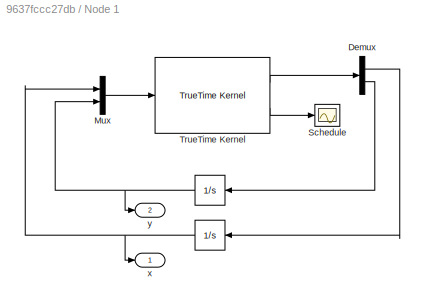
BLOCK [SubSystem] Node 1
  FunctionWithSeparateData = off
  MaskEnableString = on
  MaskHideContents = off
  MaskIconFrame = on
  MaskIconOpaque = on
  MaskIconRotate = none
  MaskIconUnits = autoscale
  MaskPortRotate = default
  MaskPromptString = NodeNbr
  MaskStyleString = edit
  MaskToolTipString = on
  MaskTunableValueString = on
  MaskType = MOTE
  MaskValueString = 1
  MaskVariables = nodeNbr=@1;
  MaskVisibilityString = on
  MinAlgLoopOccurrences = off
  Opaque = off
  Ports = [0, 2]
  PropExecContextOutsideSubsystem = off
  RTWSystemCode = Auto
  RequestExecContextInheritance = off
BLOCK [Integrator] Node 1/ 
  InitialCondition = xPos(nodeNbr)
  Ports = [1, 1]
BLOCK [Demux] Node 1/Demux
  Outputs = 2
  Ports = [1, 2]
BLOCK [Mux] Node 1/Mux
  DisplayOption = bar
  Inputs = 2
  Ports = [2, 1]
BLOCK [Scope] Node 1/Schedule
  Floating = off
  LimitDataPoints = off
  NumInputPorts = 1
  Ports = [1]
  ShowLegends = off
  TickLabels = on
  TimeRange = 3.5
  YMax = 3.7
  YMin = 1.8
  ZoomMode = xonly
BLOCK [Reference] Node 1/TrueTime Kernel  REF=truetime/TrueTime Kernel  (lib defined in slx_0362a698a4ec)
  Ports = [1, 2]
  SourceBlock = truetime/TrueTime Kernel
  SourceType = Unknown
  args = nodeNbr
  battery = off
  clockoffsetdrift = [0 0]
  ninputsoutputs = [2 2]
  ntriggers = 0
  nwnodenbr = nodeNbr
  poweroutput = off
  schedoutput = on
  sfun = node_init
  trigtype = falling
BLOCK [Outport] Node 1/x
  IconDisplay = Port number
BLOCK [Outport] Node 1/y
  IconDisplay = Port number
  Port = 2
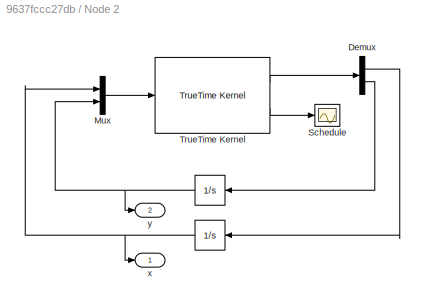
BLOCK [SubSystem] Node 2
  FunctionWithSeparateData = off
  MaskEnableString = on
  MaskHideContents = off
  MaskIconFrame = on
  MaskIconOpaque = on
  MaskIconRotate = none
  MaskIconUnits = autoscale
  MaskPortRotate = default
  MaskPromptString = NodeNbr
  MaskStyleString = edit
  MaskToolTipString = on
  MaskTunableValueString = on
  MaskType = MOTE
  MaskValueString = 2
  MaskVariables = nodeNbr=@1;
  MaskVisibilityString = on
  MinAlgLoopOccurrences = off
  Opaque = off
  Ports = [0, 2]
  PropExecContextOutsideSubsystem = off
  RTWSystemCode = Auto
  RequestExecContextInheritance = off
BLOCK [Integrator] Node 2/ 
  InitialCondition = xPos(nodeNbr)
  Ports = [1, 1]
BLOCK [Demux] Node 2/Demux
  Outputs = 2
  Ports = [1, 2]
BLOCK [Mux] Node 2/Mux
  DisplayOption = bar
  Inputs = 2
  Ports = [2, 1]
BLOCK [Scope] Node 2/Schedule
  Floating = off
  LimitDataPoints = off
  NumInputPorts = 1
  Ports = [1]
  ShowLegends = off
  TickLabels = on
  TimeRange = 3.5
  YMax = 3.7
  YMin = 1.8
  ZoomMode = xonly
BLOCK [Reference] Node 2/TrueTime Kernel  REF=truetime/TrueTime Kernel  (lib defined in slx_0362a698a4ec)
  Ports = [1, 2]
  SourceBlock = truetime/TrueTime Kernel
  SourceType = Unknown
  args = nodeNbr
  battery = off
  clockoffsetdrift = [0 0]
  ninputsoutputs = [2 2]
  ntriggers = 0
  nwnodenbr = nodeNbr
  poweroutput = off
  schedoutput = on
  sfun = node_init
  trigtype = falling
BLOCK [Outport] Node 2/x
  IconDisplay = Port number
BLOCK [Outport] Node 2/y
  IconDisplay = Port number
  Port = 2
BLOCK [SubSystem] Node 3
  FunctionWithSeparateData = off
  MaskEnableString = on
  MaskHideContents = off
  MaskIconFrame = on
  MaskIconOpaque = on
  MaskIconRotate = none
  MaskIconUnits = autoscale
  MaskPortRotate = default
  MaskPromptString = NodeNbr
  MaskStyleString = edit
  MaskToolTipString = on
  MaskTunableValueString = on
  MaskType = MOTE
  MaskValueString = 3
  MaskVariables = nodeNbr=@1;
  MaskVisibilityString = on
  MinAlgLoopOccurrences = off
  Opaque = off
  Ports = [0, 2]
  PropExecContextOutsideSubsystem = off
  RTWSystemCode = Auto
  RequestExecContextInheritance = off
BLOCK [Integrator] Node 3/ 
  InitialCondition = xPos(nodeNbr)
  Ports = [1, 1]
BLOCK [Demux] Node 3/Demux
  Outputs = 2
  Ports = [1, 2]
BLOCK [Mux] Node 3/Mux
  DisplayOption = bar
  Inputs = 2
  Ports = [2, 1]
BLOCK [Scope] Node 3/Schedule
  Floating = off
  LimitDataPoints = off
  NumInputPorts = 1
  Ports = [1]
  ShowLegends = off
  TickLabels = on
  TimeRange = 3.5
  YMax = 3.7
  YMin = 1.8
  ZoomMode = xonly
BLOCK [Reference] Node 3/TrueTime Kernel  REF=truetime/TrueTime Kernel  (lib defined in slx_0362a698a4ec)
  Ports = [1, 2]
  SourceBlock = truetime/TrueTime Kernel
  SourceType = Unknown
  args = nodeNbr
  battery = off
  clockoffsetdrift = [0 0]
  ninputsoutputs = [2 2]
  ntriggers = 0
  nwnodenbr = nodeNbr
  poweroutput = off
  schedoutput = on
  sfun = node_init
  trigtype = falling
BLOCK [Outport] Node 3/x
  IconDisplay = Port number
BLOCK [Outport] Node 3/y
  IconDisplay = Port number
  Port = 2
BLOCK [SubSystem] Node 4
  FunctionWithSeparateData = off
  MaskEnableString = on
  MaskHideContents = off
  MaskIconFrame = on
  MaskIconOpaque = on
  MaskIconRotate = none
  MaskIconUnits = autoscale
  MaskPortRotate = default
  MaskPromptString = NodeNbr
  MaskStyleString = edit
  MaskToolTipString = on
  MaskTunableValueString = on
  MaskType = MOTE
  MaskValueString = 4
  MaskVariables = nodeNbr=@1;
  MaskVisibilityString = on
  MinAlgLoopOccurrences = off
  Opaque = off
  Ports = [0, 2]
  PropExecContextOutsideSubsystem = off
  RTWSystemCode = Auto
  RequestExecContextInheritance = off
BLOCK [Integrator] Node 4/ 
  InitialCondition = xPos(nodeNbr)
  Ports = [1, 1]
BLOCK [Demux] Node 4/Demux
  Outputs = 2
  Ports = [1, 2]
BLOCK [Mux] Node 4/Mux
  DisplayOption = bar
  Inputs = 2
  Ports = [2, 1]
BLOCK [Scope] Node 4/Schedule
  Floating = off
  LimitDataPoints = off
  NumInputPorts = 1
  Ports = [1]
  ShowLegends = off
  TickLabels = on
  TimeRange = 3.5
  YMax = 3.7
  YMin = 1.8
  ZoomMode = xonly
BLOCK [Reference] Node 4/TrueTime Kernel  REF=truetime/TrueTime Kernel  (lib defined in slx_0362a698a4ec)
  Ports = [1, 2]
  SourceBlock = truetime/TrueTime Kernel
  SourceType = Unknown
  args = nodeNbr
  battery = off
  clockoffsetdrift = [0 0]
  ninputsoutputs = [2 2]
  ntriggers = 0
  nwnodenbr = nodeNbr
  poweroutput = off
  schedoutput = on
  sfun = node_init
  trigtype = falling
BLOCK [Outport] Node 4/x
  IconDisplay = Port number
BLOCK [Outport] Node 4/y
  IconDisplay = Port number
  Port = 2
BLOCK [SubSystem] Node 5
  FunctionWithSeparateData = off
  MaskEnableString = on
  MaskHideContents = off
  MaskIconFrame = on
  MaskIconOpaque = on
  MaskIconRotate = none
  MaskIconUnits = autoscale
  MaskPortRotate = default
  MaskPromptString = NodeNbr
  MaskStyleString = edit
  MaskToolTipString = on
  MaskTunableValueString = on
  MaskType = MOTE
  MaskValueString = 5
  MaskVariables = nodeNbr=@1;
  MaskVisibilityString = on
  MinAlgLoopOccurrences = off
  Opaque = off
  Ports = [0, 2]
  PropExecContextOutsideSubsystem = off
  RTWSystemCode = Auto
  RequestExecContextInheritance = off
BLOCK [Integrator] Node 5/ 
  InitialCondition = xPos(nodeNbr)
  Ports = [1, 1]
BLOCK [Demux] Node 5/Demux
  Outputs = 2
  Ports = [1, 2]
BLOCK [Mux] Node 5/Mux
  DisplayOption = bar
  Inputs = 2
  Ports = [2, 1]
BLOCK [Scope] Node 5/Schedule
  Floating = off
  LimitDataPoints = off
  NumInputPorts = 1
  Ports = [1]
  ShowLegends = off
  TickLabels = on
  TimeRange = 3.5
  YMax = 3.7
  YMin = 1.8
  ZoomMode = xonly
BLOCK [Reference] Node 5/TrueTime Kernel  REF=truetime/TrueTime Kernel  (lib defined in slx_0362a698a4ec)
  Ports = [1, 2]
  SourceBlock = truetime/TrueTime Kernel
  SourceType = Unknown
  args = nodeNbr
  battery = off
  clockoffsetdrift = [0 0]
  ninputsoutputs = [2 2]
  ntriggers = 0
  nwnodenbr = nodeNbr
  poweroutput = off
  schedoutput = on
  sfun = node_init
  trigtype = falling
BLOCK [Outport] Node 5/x
  IconDisplay = Port number
BLOCK [Outport] Node 5/y
  IconDisplay = Port number
  Port = 2
BLOCK [SubSystem] Node 6
  FunctionWithSeparateData = off
  MaskEnableString = on
  MaskHideContents = off
  MaskIconFrame = on
  MaskIconOpaque = on
  MaskIconRotate = none
  MaskIconUnits = autoscale
  MaskPortRotate = default
  MaskPromptString = NodeNbr
  MaskStyleString = edit
  MaskToolTipString = on
  MaskTunableValueString = on
  MaskType = MOTE
  MaskValueString = 6
  MaskVariables = nodeNbr=@1;
  MaskVisibilityString = on
  MinAlgLoopOccurrences = off
  Opaque = off
  Ports = [0, 2]
  PropExecContextOutsideSubsystem = off
  RTWSystemCode = Auto
  RequestExecContextInheritance = off
BLOCK [Integrator] Node 6/ 
  InitialCondition = xPos(nodeNbr)
  Ports = [1, 1]
BLOCK [Demux] Node 6/Demux
  Outputs = 2
  Ports = [1, 2]
BLOCK [Mux] Node 6/Mux
  DisplayOption = bar
  Inputs = 2
  Ports = [2, 1]
BLOCK [Scope] Node 6/Schedule
  Floating = off
  LimitDataPoints = off
  NumInputPorts = 1
  Ports = [1]
  ShowLegends = off
  TickLabels = on
  TimeRange = 3.5
  YMax = 3.7
  YMin = 1.8
  ZoomMode = xonly
BLOCK [Reference] Node 6/TrueTime Kernel  REF=truetime/TrueTime Kernel  (lib defined in slx_0362a698a4ec)
  Ports = [1, 2]
  SourceBlock = truetime/TrueTime Kernel
  SourceType = Unknown
  args = nodeNbr
  battery = off
  clockoffsetdrift = [0 0]
  ninputsoutputs = [2 2]
  ntriggers = 0
  nwnodenbr = nodeNbr
  poweroutput = off
  schedoutput = on
  sfun = node_init
  trigtype = falling
BLOCK [Outport] Node 6/x
  IconDisplay = Port number
BLOCK [Outport] Node 6/y
  IconDisplay = Port number
  Port = 2
BLOCK [SubSystem] Node 7
  FunctionWithSeparateData = off
  MaskEnableString = on
  MaskHideContents = off
  MaskIconFrame = on
  MaskIconOpaque = on
  MaskIconRotate = none
  MaskIconUnits = autoscale
  MaskPortRotate = default
  MaskPromptString = NodeNbr
  MaskStyleString = edit
  MaskToolTipString = on
  MaskTunableValueString = on
  MaskType = MOTE
  MaskValueString = 7
  MaskVariables = nodeNbr=@1;
  MaskVisibilityString = on
  MinAlgLoopOccurrences = off
  Opaque = off
  Ports = [0, 2]
  PropExecContextOutsideSubsystem = off
  RTWSystemCode = Auto
  RequestExecContextInheritance = off
BLOCK [Integrator] Node 7/ 
  InitialCondition = xPos(nodeNbr)
  Ports = [1, 1]
BLOCK [Demux] Node 7/Demux
  Outputs = 2
  Ports = [1, 2]
BLOCK [Mux] Node 7/Mux
  DisplayOption = bar
  Inputs = 2
  Ports = [2, 1]
BLOCK [Scope] Node 7/Schedule
  Floating = off
  LimitDataPoints = off
  NumInputPorts = 1
  Ports = [1]
  ShowLegends = off
  TickLabels = on
  TimeRange = 3.5
  YMax = 3.7
  YMin = 1.8
  ZoomMode = xonly
BLOCK [Reference] Node 7/TrueTime Kernel  REF=truetime/TrueTime Kernel  (lib defined in slx_0362a698a4ec)
  Ports = [1, 2]
  SourceBlock = truetime/TrueTime Kernel
  SourceType = Unknown
  args = nodeNbr
  battery = off
  clockoffsetdrift = [0 0]
  ninputsoutputs = [2 2]
  ntriggers = 0
  nwnodenbr = nodeNbr
  poweroutput = off
  schedoutput = on
  sfun = node_init
  trigtype = falling
BLOCK [Outport] Node 7/x
  IconDisplay = Port number
BLOCK [Outport] Node 7/y
  IconDisplay = Port number
  Port = 2
BLOCK [Reference] TrueTime Wireless Network  REF=truetime/TrueTime Wireless   (lib defined in slx_0362a698a4ec)
Network
  Ports = [2, 1]
  SourceBlock = truetime/TrueTime Wireless \nNetwork
  SourceType = Wireless Network
  UserDataPersistent = on
  acktimeout = 0.00004
  error_threshold = codethres
  lossprob = 0
  minsize = 24
  nnodes = 7
  nwnbr = 1
  nwtype = 802.11b (WLAN)
  pathloss = 3.5
  poweroutput = off
  rate = 1e6
  retrylimit = 5
  scheduleoutput = on
  seed = 0
  threshold = thres
  transpower = pow
  use_pathloss_function = default
ANNOTATION (root): TrueTime 2.0 Wireless Ad-hoc Routing Using AODV <copyright redacted>
LINE Animation/Mux:1 -> Animation/Mote Animation:1
LINE Animation/x:1 -> Animation/Mux:1
LINE Animation/y:1 -> Animation/Mux:2
LINE Clock:1 -> Display:1
LINE From41:1 -> Mux3:2
LINE From42:1 -> Mux3:3
LINE From43:1 -> Mux3:4
LINE From44:1 -> Mux1:2
LINE From45:1 -> Mux1:3
LINE From46:1 -> Mux1:4
LINE From53:1 -> Mux3:5
LINE From54:1 -> Mux3:6
LINE From55:1 -> Mux3:7
LINE From56:1 -> Mux1:5
LINE From57:1 -> Mux1:6
LINE From58:1 -> Mux1:7
LINE From66:1 -> Mux1:1
LINE From70:1 -> Mux3:1
NET Mux1:1 -> Animation:2, TrueTime Wireless Network:2
NET Mux3:1 -> Animation:1, TrueTime Wireless Network:1
NET Node 1/ :1 -> Node 1/Mux:1, Node 1/Mux:2, Node 1/x:1, Node 1/y:1
LINE Node 1/Demux:1 -> Node 1/ :1
LINE Node 1/Demux:2 -> Node 1/ :1
LINE Node 1/Mux:1 -> Node 1/TrueTime Kernel:1
LINE Node 1/TrueTime Kernel:1 -> Node 1/Demux:1
LINE Node 1/TrueTime Kernel:2 -> Node 1/Schedule:1
LINE Node 1:1 -> Goto9:1
LINE Node 1:2 -> Goto8:1
NET Node 2/ :1 -> Node 2/Mux:1, Node 2/Mux:2, Node 2/x:1, Node 2/y:1
LINE Node 2/Demux:1 -> Node 2/ :1
LINE Node 2/Demux:2 -> Node 2/ :1
LINE Node 2/Mux:1 -> Node 2/TrueTime Kernel:1
LINE Node 2/TrueTime Kernel:1 -> Node 2/Demux:1
LINE Node 2/TrueTime Kernel:2 -> Node 2/Schedule:1
LINE Node 2:1 -> Goto2:1
LINE Node 2:2 -> Goto1:1
NET Node 3/ :1 -> Node 3/Mux:1, Node 3/Mux:2, Node 3/x:1, Node 3/y:1
LINE Node 3/Demux:1 -> Node 3/ :1
LINE Node 3/Demux:2 -> Node 3/ :1
LINE Node 3/Mux:1 -> Node 3/TrueTime Kernel:1
LINE Node 3/TrueTime Kernel:1 -> Node 3/Demux:1
LINE Node 3/TrueTime Kernel:2 -> Node 3/Schedule:1
LINE Node 3:1 -> Goto4:1
LINE Node 3:2 -> Goto3:1
NET Node 4/ :1 -> Node 4/Mux:1, Node 4/Mux:2, Node 4/x:1, Node 4/y:1
LINE Node 4/Demux:1 -> Node 4/ :1
LINE Node 4/Demux:2 -> Node 4/ :1
LINE Node 4/Mux:1 -> Node 4/TrueTime Kernel:1
LINE Node 4/TrueTime Kernel:1 -> Node 4/Demux:1
LINE Node 4/TrueTime Kernel:2 -> Node 4/Schedule:1
LINE Node 4:1 -> Goto6:1
LINE Node 4:2 -> Goto5:1
NET Node 5/ :1 -> Node 5/Mux:1, Node 5/Mux:2, Node 5/x:1, Node 5/y:1
LINE Node 5/Demux:1 -> Node 5/ :1
LINE Node 5/Demux:2 -> Node 5/ :1
LINE Node 5/Mux:1 -> Node 5/TrueTime Kernel:1
LINE Node 5/TrueTime Kernel:1 -> Node 5/Demux:1
LINE Node 5/TrueTime Kernel:2 -> Node 5/Schedule:1
LINE Node 5:1 -> Goto10:1
LINE Node 5:2 -> Goto7:1
NET Node 6/ :1 -> Node 6/Mux:1, Node 6/Mux:2, Node 6/x:1, Node 6/y:1
LINE Node 6/Demux:1 -> Node 6/ :1
LINE Node 6/Demux:2 -> Node 6/ :1
LINE Node 6/Mux:1 -> Node 6/TrueTime Kernel:1
LINE Node 6/TrueTime Kernel:1 -> Node 6/Demux:1
LINE Node 6/TrueTime Kernel:2 -> Node 6/Schedule:1
LINE Node 6:1 -> Goto12:1
LINE Node 6:2 -> Goto11:1
NET Node 7/ :1 -> Node 7/Mux:1, Node 7/Mux:2, Node 7/x:1, Node 7/y:1
LINE Node 7/Demux:1 -> Node 7/ :1
LINE Node 7/Demux:2 -> Node 7/ :1
LINE Node 7/Mux:1 -> Node 7/TrueTime Kernel:1
LINE Node 7/TrueTime Kernel:1 -> Node 7/Demux:1
LINE Node 7/TrueTime Kernel:2 -> Node 7/Schedule:1
LINE Node 7:1 -> Goto14:1
LINE Node 7:2 -> Goto13:1
LINE TrueTime Wireless Network:1 -> Network Schedule:1
note: NET lines group one-source signal fan-out (src -> all destinations, sorted); 1:1 wires keep LINE
